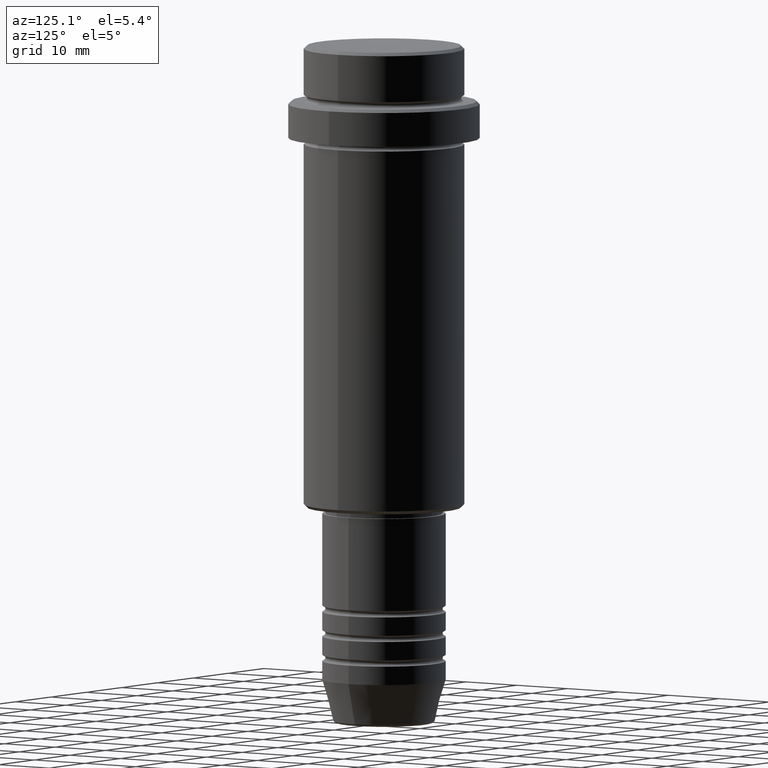
[diagram: clean part render]
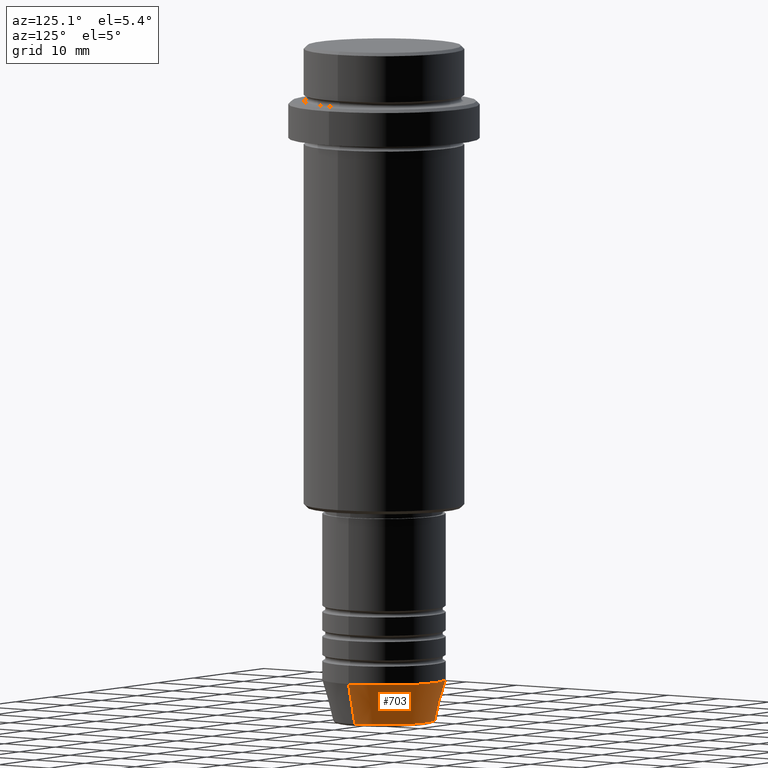
[diagram: same view with one face highlighted and labeled with its STEP entity id]
A machine part, auxiliary view. The second image highlights one B-rep face of the part: STEP entity #703.
In plain terms, the highlighted conical surface has half-angle 15 deg.
Its self-contained STEP definition (entity closure, byte-faithful):
#2 = DIRECTION ( 'NONE',  ( -0.000000000000000000, -0.000000000000000000, 1.000000000000000000 ) ) ;
#27 = EDGE_CURVE ( 'NONE', #1045, #124, #401, .T. ) ;
#44 = CARTESIAN_POINT ( 'NONE',  ( 0.000000000000000000, 0.000000000000000000, -103.0000000000000142 ) ) ;
#59 = DIRECTION ( 'NONE',  ( -0.2588190451025214611, 3.169619151431774186E-17, 0.9659258262890679791 ) ) ;
#109 = DIRECTION ( 'NONE',  ( 1.000000000000000000, 0.000000000000000000, 0.000000000000000000 ) ) ;
#124 = VERTEX_POINT ( 'NONE', #597 ) ;
#270 = EDGE_CURVE ( 'NONE', #842, #124, #629, .T. ) ;
#323 = AXIS2_PLACEMENT_3D ( 'NONE', #1152, #1398, #1261 ) ;
#378 = EDGE_CURVE ( 'NONE', #955, #842, #494, .T. ) ;
#390 = DIRECTION ( 'NONE',  ( 1.000000000000000000, 0.000000000000000000, 0.000000000000000000 ) ) ;
#401 = CIRCLE ( 'NONE', #705, 10.00000000000000000 ) ;
#494 = CIRCLE ( 'NONE', #323, 8.223655072137185940 ) ;
#583 = ORIENTED_EDGE ( 'NONE', *, *, #27, .F. ) ;
#597 = CARTESIAN_POINT ( 'NONE',  ( -10.00000000000000000, 1.224646799147353256E-15, -103.0000000000000142 ) ) ;
#610 = FACE_OUTER_BOUND ( 'NONE', #1249, .T. ) ;
#629 = LINE ( 'NONE', #717, #846 ) ;
#692 = CARTESIAN_POINT ( 'NONE',  ( 8.223655072137185940, 0.000000000000000000, -109.6294095225512706 ) ) ;
#703 = ADVANCED_FACE ( 'NONE', ( #610 ), #1413, .T. ) ;
#705 = AXIS2_PLACEMENT_3D ( 'NONE', #1156, #2, #109 ) ;
#717 = CARTESIAN_POINT ( 'NONE',  ( -10.00000000000000000, 1.224646799147353256E-15, -103.0000000000000142 ) ) ;
#727 = CARTESIAN_POINT ( 'NONE',  ( 10.00000000000000000, 0.000000000000000000, -103.0000000000000142 ) ) ;
#774 = CARTESIAN_POINT ( 'NONE',  ( 10.00000000000000000, 0.000000000000000000, -103.0000000000000142 ) ) ;
#842 = VERTEX_POINT ( 'NONE', #963 ) ;
#846 = VECTOR ( 'NONE', #59, 1000.000000000000114 ) ;
#955 = VERTEX_POINT ( 'NONE', #692 ) ;
#963 = CARTESIAN_POINT ( 'NONE',  ( -8.223655072137185940, 1.115877042642911659E-15, -109.6294095225512706 ) ) ;
#984 = AXIS2_PLACEMENT_3D ( 'NONE', #44, #1020, #390 ) ;
#1006 = ORIENTED_EDGE ( 'NONE', *, *, #1160, .F. ) ;
#1020 = DIRECTION ( 'NONE',  ( -0.000000000000000000, -0.000000000000000000, 1.000000000000000000 ) ) ;
#1045 = VERTEX_POINT ( 'NONE', #774 ) ;
#1053 = VECTOR ( 'NONE', #1334, 1000.000000000000114 ) ;
#1129 = LINE ( 'NONE', #727, #1053 ) ;
#1152 = CARTESIAN_POINT ( 'NONE',  ( 0.000000000000000000, 0.000000000000000000, -109.6294095225512706 ) ) ;
#1156 = CARTESIAN_POINT ( 'NONE',  ( 0.000000000000000000, 0.000000000000000000, -103.0000000000000142 ) ) ;
#1160 = EDGE_CURVE ( 'NONE', #955, #1045, #1129, .T. ) ;
#1249 = EDGE_LOOP ( 'NONE', ( #1303, #1299, #583, #1006 ) ) ;
#1261 = DIRECTION ( 'NONE',  ( 1.000000000000000000, 0.000000000000000000, 0.000000000000000000 ) ) ;
#1299 = ORIENTED_EDGE ( 'NONE', *, *, #270, .T. ) ;
#1303 = ORIENTED_EDGE ( 'NONE', *, *, #378, .T. ) ;
#1334 = DIRECTION ( 'NONE',  ( 0.2588190451025214611, 0.000000000000000000, 0.9659258262890679791 ) ) ;
#1398 = DIRECTION ( 'NONE',  ( -0.000000000000000000, -0.000000000000000000, 1.000000000000000000 ) ) ;
#1413 = CONICAL_SURFACE ( 'NONE', #984, 10.00000000000000000, 0.2617993877991502405 ) ;